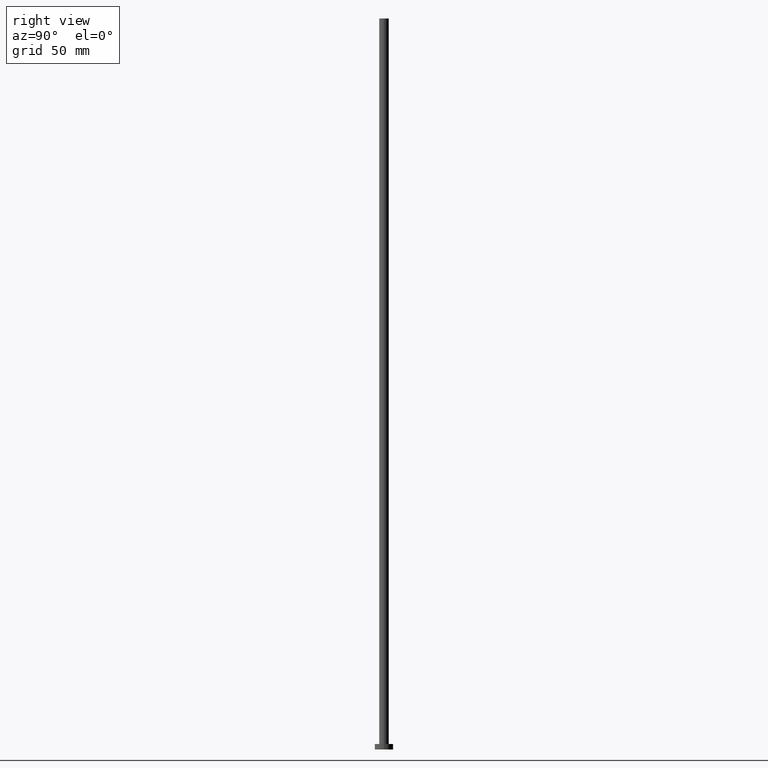
[diagram: clean part render]
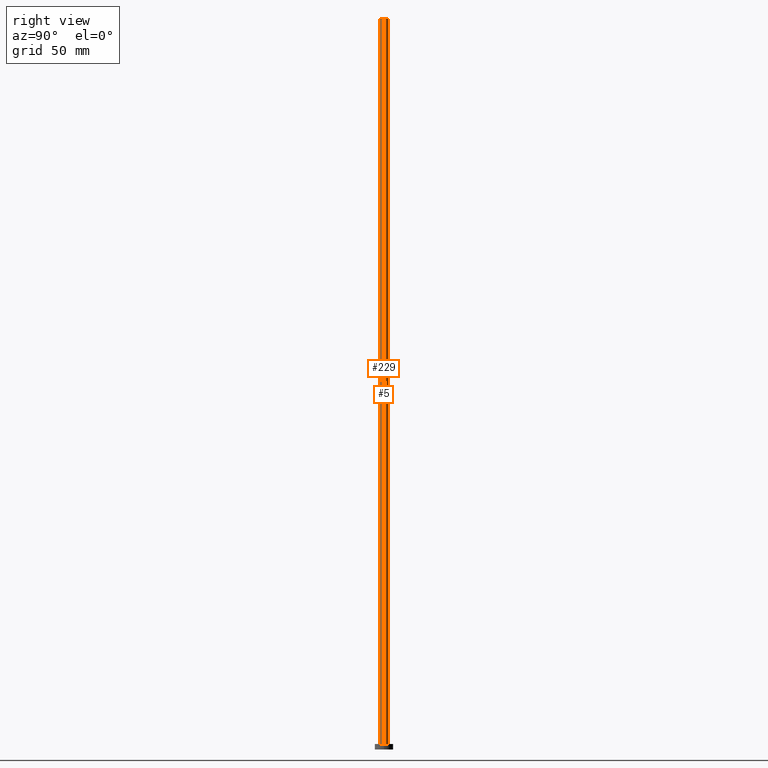
[diagram: same view with one multi-face feature highlighted, each face labeled with its STEP entity id]
A machine part, right view. The highlighted faces form ONE feature: a constant-radius fillet chain: 2 tangent blend faces with common blend radius 2.6 mm. The faces share edges in the B-rep.
Their STEP definitions:
[1] entity #229 (Cylinder):
#6 = CARTESIAN_POINT ( 'NONE',  ( 2.600000000000000089, 3.184081677783118191E-16, 3.000000000000000000 ) ) ;
#7 = CARTESIAN_POINT ( 'NONE',  ( 2.600000000000000089, 3.184081677783118191E-16, 400.0000000000000000 ) ) ;
#10 = ORIENTED_EDGE ( 'NONE', *, *, #184, .F. ) ;
#13 = CARTESIAN_POINT ( 'NONE',  ( -2.600000000000000089, 0.000000000000000000, 3.000000000000000000 ) ) ;
#22 = CIRCLE ( 'NONE', #148, 2.600000000000000089 ) ;
#36 = ORIENTED_EDGE ( 'NONE', *, *, #181, .F. ) ;
#38 = CARTESIAN_POINT ( 'NONE',  ( 0.000000000000000000, 0.000000000000000000, 400.0000000000000000 ) ) ;
#39 = EDGE_LOOP ( 'NONE', ( #10, #36, #100, #226 ) ) ;
#41 = VERTEX_POINT ( 'NONE', #7 ) ;
#43 = FACE_OUTER_BOUND ( 'NONE', #39, .T. ) ;
#53 = CIRCLE ( 'NONE', #96, 2.600000000000000089 ) ;
#61 = CARTESIAN_POINT ( 'NONE',  ( 0.000000000000000000, 0.000000000000000000, 400.0000000000000000 ) ) ;
#81 = VERTEX_POINT ( 'NONE', #6 ) ;
#82 = CARTESIAN_POINT ( 'NONE',  ( -2.600000000000000089, 0.000000000000000000, 400.0000000000000000 ) ) ;
#85 = DIRECTION ( 'NONE',  ( -0.000000000000000000, -0.000000000000000000, -1.000000000000000000 ) ) ;
#96 = AXIS2_PLACEMENT_3D ( 'NONE', #232, #103, #156 ) ;
#100 = ORIENTED_EDGE ( 'NONE', *, *, #247, .T. ) ;
#103 = DIRECTION ( 'NONE',  ( 0.000000000000000000, 0.000000000000000000, 1.000000000000000000 ) ) ;
#117 = VERTEX_POINT ( 'NONE', #13 ) ;
#120 = DIRECTION ( 'NONE',  ( -0.000000000000000000, -0.000000000000000000, -1.000000000000000000 ) ) ;
#129 = VECTOR ( 'NONE', #85, 1000.000000000000000 ) ;
#139 = VERTEX_POINT ( 'NONE', #187 ) ;
#141 = LINE ( 'NONE', #159, #173 ) ;
#148 = AXIS2_PLACEMENT_3D ( 'NONE', #61, #182, #204 ) ;
#150 = EDGE_CURVE ( 'NONE', #117, #81, #53, .T. ) ;
#156 = DIRECTION ( 'NONE',  ( 1.000000000000000000, 0.000000000000000000, 0.000000000000000000 ) ) ;
#159 = CARTESIAN_POINT ( 'NONE',  ( 2.600000000000000089, 3.184081677783118191E-16, 400.0000000000000000 ) ) ;
#163 = LINE ( 'NONE', #82, #129 ) ;
#173 = VECTOR ( 'NONE', #250, 1000.000000000000000 ) ;
#181 = EDGE_CURVE ( 'NONE', #139, #41, #22, .T. ) ;
#182 = DIRECTION ( 'NONE',  ( 0.000000000000000000, 0.000000000000000000, 1.000000000000000000 ) ) ;
#184 = EDGE_CURVE ( 'NONE', #41, #81, #141, .T. ) ;
#187 = CARTESIAN_POINT ( 'NONE',  ( -2.600000000000000089, 0.000000000000000000, 400.0000000000000000 ) ) ;
#204 = DIRECTION ( 'NONE',  ( 1.000000000000000000, 0.000000000000000000, 0.000000000000000000 ) ) ;
#214 = AXIS2_PLACEMENT_3D ( 'NONE', #38, #120, #255 ) ;
#226 = ORIENTED_EDGE ( 'NONE', *, *, #150, .T. ) ;
#229 = ADVANCED_FACE ( 'NONE', ( #43 ), #234, .T. ) ;
#232 = CARTESIAN_POINT ( 'NONE',  ( 0.000000000000000000, 0.000000000000000000, 3.000000000000000000 ) ) ;
#234 = CYLINDRICAL_SURFACE ( 'NONE', #214, 2.600000000000000089 ) ;
#247 = EDGE_CURVE ( 'NONE', #139, #117, #163, .T. ) ;
#250 = DIRECTION ( 'NONE',  ( -0.000000000000000000, -0.000000000000000000, -1.000000000000000000 ) ) ;
#255 = DIRECTION ( 'NONE',  ( -1.000000000000000000, 0.000000000000000000, 0.000000000000000000 ) ) ;
[2] entity #5 (Cylinder):
#5 = ADVANCED_FACE ( 'NONE', ( #52 ), #60, .T. ) ;
#6 = CARTESIAN_POINT ( 'NONE',  ( 2.600000000000000089, 3.184081677783118191E-16, 3.000000000000000000 ) ) ;
#7 = CARTESIAN_POINT ( 'NONE',  ( 2.600000000000000089, 3.184081677783118191E-16, 400.0000000000000000 ) ) ;
#13 = CARTESIAN_POINT ( 'NONE',  ( -2.600000000000000089, 0.000000000000000000, 3.000000000000000000 ) ) ;
#25 = CARTESIAN_POINT ( 'NONE',  ( 0.000000000000000000, 0.000000000000000000, 400.0000000000000000 ) ) ;
#33 = ORIENTED_EDGE ( 'NONE', *, *, #125, .F. ) ;
#37 = CARTESIAN_POINT ( 'NONE',  ( 0.000000000000000000, 0.000000000000000000, 400.0000000000000000 ) ) ;
#41 = VERTEX_POINT ( 'NONE', #7 ) ;
#50 = DIRECTION ( 'NONE',  ( 1.000000000000000000, 0.000000000000000000, 0.000000000000000000 ) ) ;
#52 = FACE_OUTER_BOUND ( 'NONE', #178, .T. ) ;
#60 = CYLINDRICAL_SURFACE ( 'NONE', #91, 2.600000000000000089 ) ;
#81 = VERTEX_POINT ( 'NONE', #6 ) ;
#82 = CARTESIAN_POINT ( 'NONE',  ( -2.600000000000000089, 0.000000000000000000, 400.0000000000000000 ) ) ;
#83 = CARTESIAN_POINT ( 'NONE',  ( 0.000000000000000000, 0.000000000000000000, 3.000000000000000000 ) ) ;
#85 = DIRECTION ( 'NONE',  ( -0.000000000000000000, -0.000000000000000000, -1.000000000000000000 ) ) ;
#91 = AXIS2_PLACEMENT_3D ( 'NONE', #25, #110, #174 ) ;
#97 = CIRCLE ( 'NONE', #235, 2.600000000000000089 ) ;
#108 = EDGE_CURVE ( 'NONE', #81, #117, #205, .T. ) ;
#110 = DIRECTION ( 'NONE',  ( -0.000000000000000000, -0.000000000000000000, -1.000000000000000000 ) ) ;
#117 = VERTEX_POINT ( 'NONE', #13 ) ;
#125 = EDGE_CURVE ( 'NONE', #41, #139, #97, .T. ) ;
#129 = VECTOR ( 'NONE', #85, 1000.000000000000000 ) ;
#130 = ORIENTED_EDGE ( 'NONE', *, *, #108, .T. ) ;
#139 = VERTEX_POINT ( 'NONE', #187 ) ;
#141 = LINE ( 'NONE', #159, #173 ) ;
#153 = ORIENTED_EDGE ( 'NONE', *, *, #184, .T. ) ;
#159 = CARTESIAN_POINT ( 'NONE',  ( 2.600000000000000089, 3.184081677783118191E-16, 400.0000000000000000 ) ) ;
#161 = AXIS2_PLACEMENT_3D ( 'NONE', #83, #198, #50 ) ;
#163 = LINE ( 'NONE', #82, #129 ) ;
#173 = VECTOR ( 'NONE', #250, 1000.000000000000000 ) ;
#174 = DIRECTION ( 'NONE',  ( -1.000000000000000000, 0.000000000000000000, 0.000000000000000000 ) ) ;
#178 = EDGE_LOOP ( 'NONE', ( #33, #153, #130, #210 ) ) ;
#184 = EDGE_CURVE ( 'NONE', #41, #81, #141, .T. ) ;
#187 = CARTESIAN_POINT ( 'NONE',  ( -2.600000000000000089, 0.000000000000000000, 400.0000000000000000 ) ) ;
#194 = DIRECTION ( 'NONE',  ( 1.000000000000000000, 0.000000000000000000, 0.000000000000000000 ) ) ;
#198 = DIRECTION ( 'NONE',  ( 0.000000000000000000, 0.000000000000000000, 1.000000000000000000 ) ) ;
#200 = DIRECTION ( 'NONE',  ( 0.000000000000000000, 0.000000000000000000, 1.000000000000000000 ) ) ;
#205 = CIRCLE ( 'NONE', #161, 2.600000000000000089 ) ;
#210 = ORIENTED_EDGE ( 'NONE', *, *, #247, .F. ) ;
#235 = AXIS2_PLACEMENT_3D ( 'NONE', #37, #200, #194 ) ;
#247 = EDGE_CURVE ( 'NONE', #139, #117, #163, .T. ) ;
#250 = DIRECTION ( 'NONE',  ( -0.000000000000000000, -0.000000000000000000, -1.000000000000000000 ) ) ;